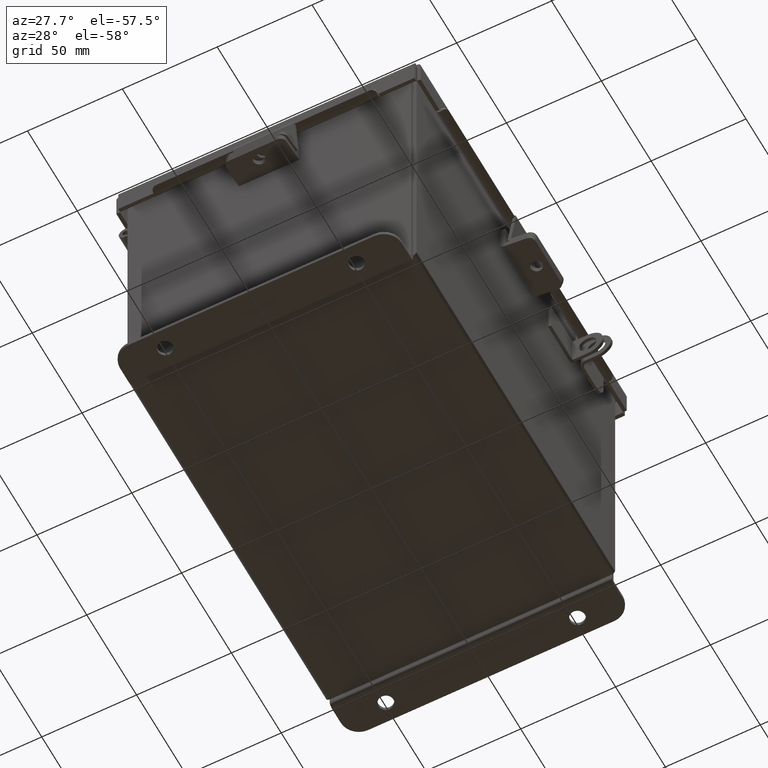
[diagram: clean part render]
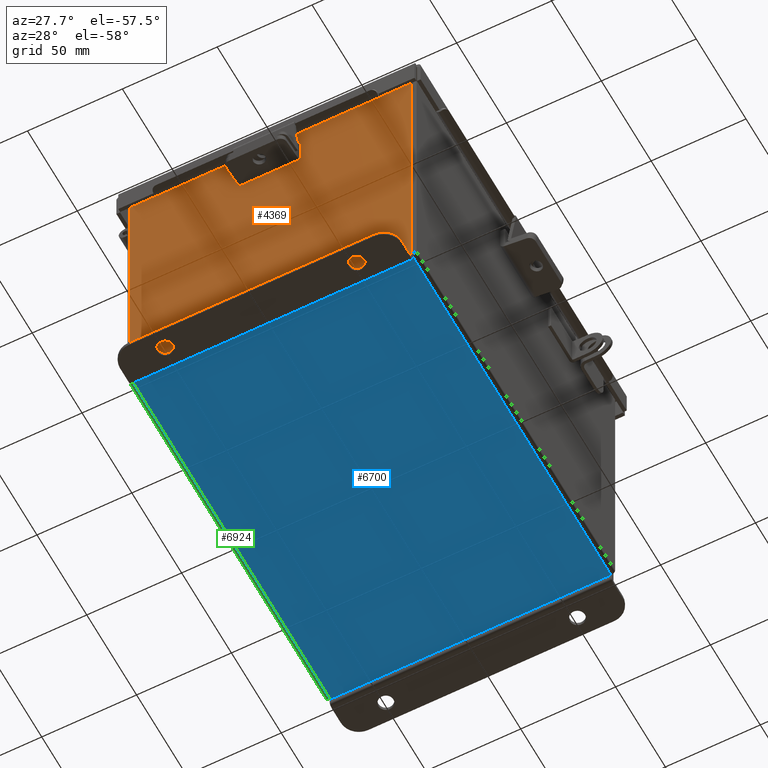
[diagram: same view with three faces highlighted in distinct colors, each labeled with its STEP entity id]
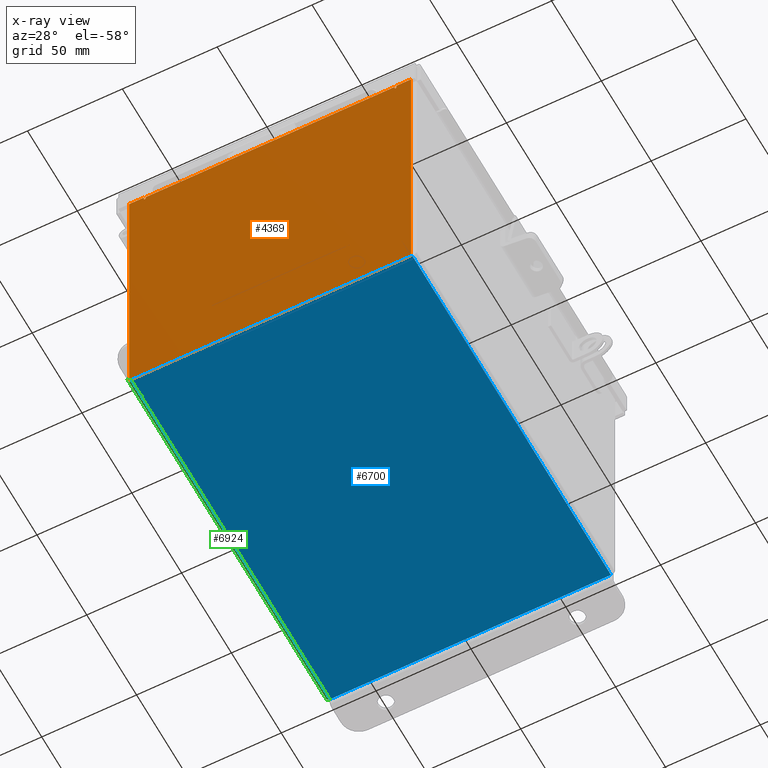
[diagram: x-ray of the same camera — body ghosted, the three highlighted faces saturated]
A machine part, auxiliary view with three faces highlighted in distinct colors.
The next image is the same camera in x-ray (body ghosted, the three faces saturated) — at least one of them is partly hidden behind the body in this view.
Their STEP definitions:

[orange] entity #4369 — the highlighted planar face has unit normal (-0, 1, -0).
#43 = DIRECTION ( 'NONE',  ( -4.910036603141682400E-031, -1.000000000000000000, -0.0000000000000000000 ) ) ;
#367 = EDGE_CURVE ( 'NONE', #4234, #12031, #9067, .T. ) ;
#404 = CARTESIAN_POINT ( 'NONE',  ( 2.925300000000001800, 0.0000000000000000000, 2.925299999999997800 ) ) ;
#427 = EDGE_CURVE ( 'NONE', #1230, #986, #7583, .T. ) ;
#492 = AXIS2_PLACEMENT_3D ( 'NONE', #11921, #4827, #13116 ) ;
#714 = VECTOR ( 'NONE', #8417, 39.37007874015748100 ) ;
#799 = VERTEX_POINT ( 'NONE', #5576 ) ;
#815 = DIRECTION ( 'NONE',  ( 0.0000000000000000000, 0.0000000000000000000, 1.000000000000000000 ) ) ;
#986 = VERTEX_POINT ( 'NONE', #11436 ) ;
#1001 = DIRECTION ( 'NONE',  ( 1.000000000000000000, 4.910036603141682400E-031, 0.0000000000000000000 ) ) ;
#1230 = VERTEX_POINT ( 'NONE', #14135 ) ;
#1271 = VECTOR ( 'NONE', #815, 39.37007874015748100 ) ;
#1281 = AXIS2_PLACEMENT_3D ( 'NONE', #5963, #43, #8326 ) ;
#1779 = EDGE_CURVE ( 'NONE', #799, #986, #12836, .T. ) ;
#2405 = VECTOR ( 'NONE', #9161, 39.37007874015748100 ) ;
#2638 = DIRECTION ( 'NONE',  ( -1.085143195099989400E-014, 0.0000000000000000000, -1.000000000000000000 ) ) ;
#2870 = VECTOR ( 'NONE', #1001, 39.37007874015748100 ) ;
#3107 = AXIS2_PLACEMENT_3D ( 'NONE', #11045, #3934, #12230 ) ;
#3339 = CARTESIAN_POINT ( 'NONE',  ( -2.582299999999998300, 0.0000000000000000000, 0.0000000000000000000 ) ) ;
#3486 = EDGE_CURVE ( 'NONE', #10253, #5793, #13640, .T. ) ;
#3596 = ORIENTED_EDGE ( 'NONE', *, *, #12555, .T. ) ;
#3861 = LINE ( 'NONE', #4923, #714 ) ;
#3878 = EDGE_CURVE ( 'NONE', #7484, #799, #10829, .T. ) ;
#3934 = DIRECTION ( 'NONE',  ( 4.910036603141682400E-031, 1.000000000000000000, -0.0000000000000000000 ) ) ;
#4012 = ORIENTED_EDGE ( 'NONE', *, *, #5391, .F. ) ;
#4157 = CARTESIAN_POINT ( 'NONE',  ( 2.582300000000001400, 0.0000000000000000000, 2.912299999999998800 ) ) ;
#4234 = VERTEX_POINT ( 'NONE', #13474 ) ;
#4265 = VERTEX_POINT ( 'NONE', #14055 ) ;
#4369 = ADVANCED_FACE ( 'NONE', ( #7044 ), #10679, .F. ) ;
#4374 = ORIENTED_EDGE ( 'NONE', *, *, #427, .F. ) ;
#4377 = EDGE_CURVE ( 'NONE', #13754, #4234, #10215, .T. ) ;
#4434 = VECTOR ( 'NONE', #11381, 39.37007874015748100 ) ;
#4684 = VECTOR ( 'NONE', #2638, 39.37007874015748100 ) ;
#4827 = DIRECTION ( 'NONE',  ( 4.910036603141682400E-031, 1.000000000000000000, -0.0000000000000000000 ) ) ;
#4923 = CARTESIAN_POINT ( 'NONE',  ( -2.619649999999998300, 0.0000000000000000000, 0.0000000000000000000 ) ) ;
#5075 = CARTESIAN_POINT ( 'NONE',  ( 2.582300000000001400, 0.0000000000000000000, 0.0000000000000000000 ) ) ;
#5106 = EDGE_CURVE ( 'NONE', #1230, #11627, #13895, .T. ) ;
#5391 = EDGE_CURVE ( 'NONE', #4265, #8861, #3861, .T. ) ;
#5576 = CARTESIAN_POINT ( 'NONE',  ( 2.925300000000001800, 0.0000000000000000000, 2.925299999999997800 ) ) ;
#5674 = CARTESIAN_POINT ( 'NONE',  ( -2.582299999999998300, -3.278217592397115900E-015, 2.912300000000000100 ) ) ;
#5793 = VERTEX_POINT ( 'NONE', #11004 ) ;
#5963 = CARTESIAN_POINT ( 'NONE',  ( 0.0000000000000000000, 0.0000000000000000000, 0.0000000000000000000 ) ) ;
#6333 = ORIENTED_EDGE ( 'NONE', *, *, #3486, .F. ) ;
#6415 = DIRECTION ( 'NONE',  ( 1.000000000000000000, 4.910036603141682400E-031, 0.0000000000000000000 ) ) ;
#6471 = CARTESIAN_POINT ( 'NONE',  ( -2.619649999999998300, -4.370956789862821100E-015, 2.925300000000000000 ) ) ;
#6501 = ORIENTED_EDGE ( 'NONE', *, *, #14499, .T. ) ;
#7044 = FACE_OUTER_BOUND ( 'NONE', #7723, .T. ) ;
#7122 = CARTESIAN_POINT ( 'NONE',  ( -2.925299999999998200, -4.370956789862821100E-015, 2.925300000000001300 ) ) ;
#7246 = ORIENTED_EDGE ( 'NONE', *, *, #8692, .F. ) ;
#7404 = CARTESIAN_POINT ( 'NONE',  ( -2.582299999999998300, -3.278217592397115900E-015, 2.912300000000000100 ) ) ;
#7478 = CIRCLE ( 'NONE', #3107, 0.01867500000000003900 ) ;
#7484 = VERTEX_POINT ( 'NONE', #8473 ) ;
#7564 = DIRECTION ( 'NONE',  ( 0.0000000000000000000, 0.0000000000000000000, -1.000000000000000000 ) ) ;
#7583 = LINE ( 'NONE', #10387, #4434 ) ;
#7667 = VECTOR ( 'NONE', #6415, 39.37007874015748100 ) ;
#7681 = VECTOR ( 'NONE', #14067, 39.37007874015748100 ) ;
#7723 = EDGE_LOOP ( 'NONE', ( #4012, #12085, #6333, #3596, #9528, #10849, #7246, #13441, #13027, #4374, #11572, #6501 ) ) ;
#8326 = DIRECTION ( 'NONE',  ( 0.0000000000000000000, 0.0000000000000000000, -1.000000000000000000 ) ) ;
#8417 = DIRECTION ( 'NONE',  ( 0.0000000000000000000, 0.0000000000000000000, 1.000000000000000000 ) ) ;
#8473 = CARTESIAN_POINT ( 'NONE',  ( 2.619650000000001800, 0.0000000000000000000, 2.925299999999999100 ) ) ;
#8579 = LINE ( 'NONE', #7404, #14162 ) ;
#8582 = DIRECTION ( 'NONE',  ( 1.000000000000000000, 4.910036603141682400E-031, -0.0000000000000000000 ) ) ;
#8692 = EDGE_CURVE ( 'NONE', #7484, #13754, #13769, .T. ) ;
#8722 = CARTESIAN_POINT ( 'NONE',  ( -2.925299999999998200, -4.370956789862821100E-015, 2.925300000000001300 ) ) ;
#8799 = CARTESIAN_POINT ( 'NONE',  ( 2.619650000000001800, 0.0000000000000000000, 2.874949999999998800 ) ) ;
#8861 = VERTEX_POINT ( 'NONE', #6471 ) ;
#9067 = LINE ( 'NONE', #5075, #2405 ) ;
#9156 = LINE ( 'NONE', #15202, #2870 ) ;
#9161 = DIRECTION ( 'NONE',  ( 0.0000000000000000000, 0.0000000000000000000, 1.000000000000000000 ) ) ;
#9312 = VECTOR ( 'NONE', #7564, 39.37007874015748100 ) ;
#9528 = ORIENTED_EDGE ( 'NONE', *, *, #367, .F. ) ;
#9732 = CARTESIAN_POINT ( 'NONE',  ( 2.619649999999970700, 0.0000000000000000000, -2.458663194297836900E-014 ) ) ;
#10215 = CIRCLE ( 'NONE', #492, 0.01867500000000003900 ) ;
#10253 = VERTEX_POINT ( 'NONE', #5674 ) ;
#10387 = CARTESIAN_POINT ( 'NONE',  ( -2.925299999999998200, -4.370956789862821100E-015, -3.099299999999995900 ) ) ;
#10679 = PLANE ( 'NONE',  #1281 ) ;
#10829 = LINE ( 'NONE', #8722, #7667 ) ;
#10849 = ORIENTED_EDGE ( 'NONE', *, *, #4377, .F. ) ;
#11004 = CARTESIAN_POINT ( 'NONE',  ( -2.582299999999998300, -4.370956789862821100E-015, 2.874949999999998800 ) ) ;
#11045 = CARTESIAN_POINT ( 'NONE',  ( -2.600974999999998300, -4.370956789862821100E-015, 2.874949999999998800 ) ) ;
#11381 = DIRECTION ( 'NONE',  ( 1.000000000000000000, 4.910036603141682400E-031, -0.0000000000000000000 ) ) ;
#11436 = CARTESIAN_POINT ( 'NONE',  ( 2.925300000000001800, 0.0000000000000000000, -3.099300000000000400 ) ) ;
#11572 = ORIENTED_EDGE ( 'NONE', *, *, #5106, .T. ) ;
#11627 = VERTEX_POINT ( 'NONE', #7122 ) ;
#11921 = CARTESIAN_POINT ( 'NONE',  ( 2.600975000000001800, 0.0000000000000000000, 2.874949999999997900 ) ) ;
#12031 = VERTEX_POINT ( 'NONE', #4157 ) ;
#12085 = ORIENTED_EDGE ( 'NONE', *, *, #12595, .F. ) ;
#12230 = DIRECTION ( 'NONE',  ( 0.0000000000000000000, 0.0000000000000000000, -1.000000000000000000 ) ) ;
#12555 = EDGE_CURVE ( 'NONE', #10253, #12031, #8579, .T. ) ;
#12595 = EDGE_CURVE ( 'NONE', #5793, #4265, #7478, .T. ) ;
#12836 = LINE ( 'NONE', #404, #9312 ) ;
#13027 = ORIENTED_EDGE ( 'NONE', *, *, #1779, .T. ) ;
#13116 = DIRECTION ( 'NONE',  ( 0.0000000000000000000, 0.0000000000000000000, -1.000000000000000000 ) ) ;
#13441 = ORIENTED_EDGE ( 'NONE', *, *, #3878, .T. ) ;
#13474 = CARTESIAN_POINT ( 'NONE',  ( 2.582300000000001400, 0.0000000000000000000, 2.874949999999997900 ) ) ;
#13640 = LINE ( 'NONE', #3339, #7681 ) ;
#13754 = VERTEX_POINT ( 'NONE', #8799 ) ;
#13769 = LINE ( 'NONE', #9732, #4684 ) ;
#13895 = LINE ( 'NONE', #14774, #1271 ) ;
#14055 = CARTESIAN_POINT ( 'NONE',  ( -2.619649999999998300, -4.370956789862821100E-015, 2.874949999999998800 ) ) ;
#14067 = DIRECTION ( 'NONE',  ( 0.0000000000000000000, 0.0000000000000000000, -1.000000000000000000 ) ) ;
#14135 = CARTESIAN_POINT ( 'NONE',  ( -2.925299999999997800, -4.370956789862821100E-015, -3.099299999999995900 ) ) ;
#14162 = VECTOR ( 'NONE', #8582, 39.37007874015748100 ) ;
#14499 = EDGE_CURVE ( 'NONE', #11627, #8861, #9156, .T. ) ;
#14774 = CARTESIAN_POINT ( 'NONE',  ( -2.925299999999998200, -4.370956789862821100E-015, 2.925300000000001300 ) ) ;
#15202 = CARTESIAN_POINT ( 'NONE',  ( -2.925299999999998200, -4.370956789862821100E-015, 2.925300000000001300 ) ) ;

[blue] entity #6700 — the highlighted planar face has unit normal (0, 0, -1).
#73 = EDGE_LOOP ( 'NONE', ( #11948, #13239, #1048, #11130 ) ) ;
#533 = VERTEX_POINT ( 'NONE', #11324 ) ;
#1048 = ORIENTED_EDGE ( 'NONE', *, *, #2374, .F. ) ;
#1064 = DIRECTION ( 'NONE',  ( -0.0000000000000000000, 1.000000000000000000, 8.208677865577646300E-017 ) ) ;
#1475 = CARTESIAN_POINT ( 'NONE',  ( -2.912299999999999200, -3.925299999999999100, -0.07470000000000054400 ) ) ;
#2374 = EDGE_CURVE ( 'NONE', #2755, #533, #5477, .T. ) ;
#2611 = LINE ( 'NONE', #11708, #14462 ) ;
#2720 = CARTESIAN_POINT ( 'NONE',  ( 0.0000000000000000000, 0.0000000000000000000, -0.07470000000000000300 ) ) ;
#2755 = VERTEX_POINT ( 'NONE', #5996 ) ;
#2884 = VECTOR ( 'NONE', #13414, 39.37007874015748100 ) ;
#3243 = EDGE_CURVE ( 'NONE', #2755, #12725, #7514, .T. ) ;
#3325 = EDGE_CURVE ( 'NONE', #6878, #533, #6405, .T. ) ;
#3429 = DIRECTION ( 'NONE',  ( -1.000000000000000000, -0.0000000000000000000, -0.0000000000000000000 ) ) ;
#3889 = DIRECTION ( 'NONE',  ( -1.000000000000000000, 0.0000000000000000000, -0.0000000000000000000 ) ) ;
#4289 = EDGE_CURVE ( 'NONE', #6878, #12725, #2611, .T. ) ;
#5477 = LINE ( 'NONE', #6716, #14564 ) ;
#5996 = CARTESIAN_POINT ( 'NONE',  ( -2.912299999999999200, -3.925299999999999100, -0.07470000000000054400 ) ) ;
#6405 = LINE ( 'NONE', #8146, #2884 ) ;
#6700 = ADVANCED_FACE ( 'NONE', ( #9929 ), #9749, .T. ) ;
#6716 = CARTESIAN_POINT ( 'NONE',  ( -2.999999999999999600, -3.925299999999999100, -0.07470000000000000300 ) ) ;
#6878 = VERTEX_POINT ( 'NONE', #6936 ) ;
#6936 = CARTESIAN_POINT ( 'NONE',  ( 2.912300000000000600, 3.925300000000000500, -0.07469999999999935000 ) ) ;
#7139 = VECTOR ( 'NONE', #1064, 39.37007874015748100 ) ;
#7514 = LINE ( 'NONE', #1475, #7139 ) ;
#8146 = CARTESIAN_POINT ( 'NONE',  ( 2.912300000000000600, 3.925300000000000500, -0.07469999999999935000 ) ) ;
#8897 = CARTESIAN_POINT ( 'NONE',  ( -2.912299999999999200, 3.925300000000000500, -0.07470000000000000300 ) ) ;
#9749 = PLANE ( 'NONE',  #10852 ) ;
#9929 = FACE_OUTER_BOUND ( 'NONE', #73, .T. ) ;
#10852 = AXIS2_PLACEMENT_3D ( 'NONE', #2720, #10998, #3889 ) ;
#10998 = DIRECTION ( 'NONE',  ( 0.0000000000000000000, 0.0000000000000000000, -1.000000000000000000 ) ) ;
#11130 = ORIENTED_EDGE ( 'NONE', *, *, #3243, .T. ) ;
#11324 = CARTESIAN_POINT ( 'NONE',  ( 2.912300000000000600, -3.925299999999998700, -0.07469999999999998900 ) ) ;
#11708 = CARTESIAN_POINT ( 'NONE',  ( -2.999999999999999600, 3.925300000000000500, -0.07470000000000000300 ) ) ;
#11948 = ORIENTED_EDGE ( 'NONE', *, *, #4289, .F. ) ;
#12725 = VERTEX_POINT ( 'NONE', #8897 ) ;
#12731 = DIRECTION ( 'NONE',  ( 1.000000000000000000, 0.0000000000000000000, 0.0000000000000000000 ) ) ;
#13239 = ORIENTED_EDGE ( 'NONE', *, *, #3325, .T. ) ;
#13414 = DIRECTION ( 'NONE',  ( -0.0000000000000000000, -1.000000000000000000, -8.208677865577646300E-017 ) ) ;
#14462 = VECTOR ( 'NONE', #3429, 39.37007874015748100 ) ;
#14564 = VECTOR ( 'NONE', #12731, 39.37007874015748100 ) ;

[green] entity #6924 — the highlighted cylindrical surface (edge-blend (fillet) strip) has radius 2.2276 mm, axis along (0, -1, -0).
#506 = CARTESIAN_POINT ( 'NONE',  ( -2.912299999999999200, 3.925300000000000500, 0.01300000000000020100 ) ) ;
#1064 = DIRECTION ( 'NONE',  ( -0.0000000000000000000, 1.000000000000000000, 8.208677865577646300E-017 ) ) ;
#1120 = DIRECTION ( 'NONE',  ( -1.000000000000000000, 0.0000000000000000000, -3.455694262224952200E-015 ) ) ;
#1475 = CARTESIAN_POINT ( 'NONE',  ( -2.912299999999999200, -3.925299999999999100, -0.07470000000000054400 ) ) ;
#1706 = DIRECTION ( 'NONE',  ( 0.0000000000000000000, 0.0000000000000000000, -1.000000000000000000 ) ) ;
#1777 = FACE_OUTER_BOUND ( 'NONE', #6761, .T. ) ;
#2027 = CIRCLE ( 'NONE', #8639, 0.08770000000000009700 ) ;
#2356 = DIRECTION ( 'NONE',  ( 0.0000000000000000000, -1.000000000000000000, -8.208677865577646300E-017 ) ) ;
#2755 = VERTEX_POINT ( 'NONE', #5996 ) ;
#3228 = CARTESIAN_POINT ( 'NONE',  ( -2.999999999999999600, -3.925299999999999100, 0.01299999999999929700 ) ) ;
#3243 = EDGE_CURVE ( 'NONE', #2755, #12725, #7514, .T. ) ;
#3618 = CARTESIAN_POINT ( 'NONE',  ( -2.999999999999999600, 3.925300000000000500, 0.01299999999999989400 ) ) ;
#3791 = CYLINDRICAL_SURFACE ( 'NONE', #14523, 0.08770000000000026400 ) ;
#4319 = EDGE_CURVE ( 'NONE', #13289, #2755, #13739, .T. ) ;
#4851 = ORIENTED_EDGE ( 'NONE', *, *, #4319, .F. ) ;
#4944 = VECTOR ( 'NONE', #8382, 39.37007874015748100 ) ;
#5028 = EDGE_CURVE ( 'NONE', #12725, #8611, #2027, .T. ) ;
#5696 = ORIENTED_EDGE ( 'NONE', *, *, #13505, .T. ) ;
#5859 = CARTESIAN_POINT ( 'NONE',  ( -2.912299999999999200, -3.925299999999999100, 0.01299999999999955200 ) ) ;
#5996 = CARTESIAN_POINT ( 'NONE',  ( -2.912299999999999200, -3.925299999999999100, -0.07470000000000054400 ) ) ;
#6761 = EDGE_LOOP ( 'NONE', ( #7542, #4851, #5696, #7687 ) ) ;
#6924 = ADVANCED_FACE ( 'NONE', ( #1777 ), #3791, .T. ) ;
#7139 = VECTOR ( 'NONE', #1064, 39.37007874015748100 ) ;
#7514 = LINE ( 'NONE', #1475, #7139 ) ;
#7542 = ORIENTED_EDGE ( 'NONE', *, *, #3243, .F. ) ;
#7687 = ORIENTED_EDGE ( 'NONE', *, *, #5028, .F. ) ;
#8213 = DIRECTION ( 'NONE',  ( 0.0000000000000000000, -1.000000000000000000, -8.208677865577646300E-017 ) ) ;
#8382 = DIRECTION ( 'NONE',  ( -2.404758783435166500E-031, 1.000000000000000000, 6.959590333641412800E-017 ) ) ;
#8611 = VERTEX_POINT ( 'NONE', #3618 ) ;
#8639 = AXIS2_PLACEMENT_3D ( 'NONE', #506, #8789, #1706 ) ;
#8789 = DIRECTION ( 'NONE',  ( -0.0000000000000000000, 1.000000000000000000, 8.208677865577646300E-017 ) ) ;
#8897 = CARTESIAN_POINT ( 'NONE',  ( -2.912299999999999200, 3.925300000000000500, -0.07470000000000000300 ) ) ;
#9442 = CARTESIAN_POINT ( 'NONE',  ( -2.912299999999999200, -3.925299999999999100, 0.01299999999999955200 ) ) ;
#10626 = DIRECTION ( 'NONE',  ( 0.0000000000000000000, 0.0000000000000000000, -1.000000000000000000 ) ) ;
#11235 = LINE ( 'NONE', #13118, #4944 ) ;
#11908 = AXIS2_PLACEMENT_3D ( 'NONE', #9442, #2356, #10626 ) ;
#12725 = VERTEX_POINT ( 'NONE', #8897 ) ;
#13118 = CARTESIAN_POINT ( 'NONE',  ( -2.999999999999999600, 3.925300000000000500, 0.01299999999999984300 ) ) ;
#13289 = VERTEX_POINT ( 'NONE', #3228 ) ;
#13505 = EDGE_CURVE ( 'NONE', #13289, #8611, #11235, .T. ) ;
#13739 = CIRCLE ( 'NONE', #11908, 0.08770000000000009700 ) ;
#14523 = AXIS2_PLACEMENT_3D ( 'NONE', #5859, #8213, #1120 ) ;